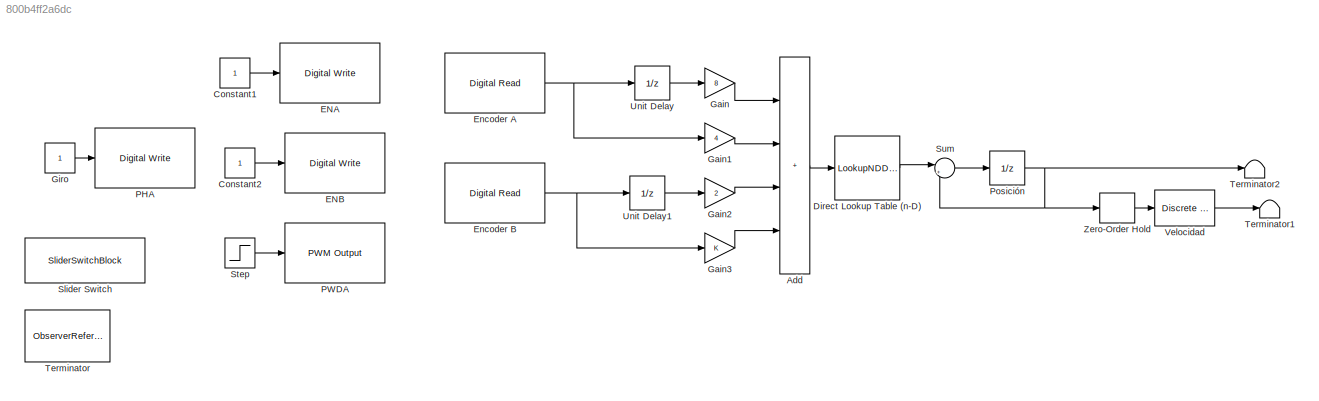
MODEL slx_800b4ff2a6dc
KIND model
CONFIG AbsTol = auto
CONFIG EnableMultiTasking = on
CONFIG FixedStep = auto
CONFIG MaxStep = auto
CONFIG MinStep = auto
CONFIG RelTol = 1e-3
CONFIG SampleTimeConstraint = Unconstrained
CONFIG SolverName = FixedStepAuto
CONFIG StartTime = 0.0
CONFIG StopTime = 10.0
BLOCK [Sum] Add
  IconShape = rectangular
  Inputs = ++++
  OutDataTypeStr = double
  Ports = [4, 1]
BLOCK [Constant] Constant1
BLOCK [Constant] Constant2
BLOCK [LookupNDDirect] Direct Lookup Table (n-D)
  NumberOfTableDimensions = 1
  Ports = [1, 1]
  Table = [0,-1,1,0,1,0,0,-1,-1,0,0,1,0,1,-1,0]
BLOCK [Reference] ENA  REF=mbedblockslib/Digital Write
  Ports = [1]
  SourceBlock = mbedblockslib/Digital Write
  SourceProductBaseCode = MICROBIT,NUCLEO,STMICRODIS
  SourceType = mbed.DigitalWrite
BLOCK [Reference] ENB  REF=mbedblockslib/Digital Write
  Ports = [1]
  SourceBlock = mbedblockslib/Digital Write
  SourceProductBaseCode = MICROBIT,NUCLEO,STMICRODIS
  SourceType = mbed.DigitalWrite
BLOCK [Reference] Encoder A  REF=mbedblockslib/Digital Read
  Ports = [0, 1]
  SourceBlock = mbedblockslib/Digital Read
  SourceProductBaseCode = MICROBIT,NUCLEO,STMICRODIS
  SourceType = mbed.DigitalRead
BLOCK [Reference] Encoder B  REF=mbedblockslib/Digital Read
  Ports = [0, 1]
  SourceBlock = mbedblockslib/Digital Read
  SourceProductBaseCode = MICROBIT,NUCLEO,STMICRODIS
  SourceType = mbed.DigitalRead
BLOCK [Gain] Gain
  Gain = 8
BLOCK [Gain] Gain1
  Gain = 4
BLOCK [Gain] Gain2
  Gain = 2
BLOCK [Gain] Gain3
BLOCK [Constant] Giro
BLOCK [Reference] PHA  REF=mbedblockslib/Digital Write
  Ports = [1]
  SourceBlock = mbedblockslib/Digital Write
  SourceProductBaseCode = MICROBIT,NUCLEO,STMICRODIS
  SourceType = mbed.DigitalWrite
BLOCK [Reference] PWDA  REF=mbedblockslib/PWM Output
  Ports = [1]
  SourceBlock = mbedblockslib/PWM Output
  SourceProductBaseCode = MICROBIT,NUCLEO,STMICRODIS
  SourceType = mbed.PWMOutput
BLOCK [UnitDelay] Posición
  HasFrameUpgradeWarning = on
  SampleTime = -1
BLOCK [SliderSwitchBlock] Slider Switch
BLOCK [Step] Step
  After = 50
  SampleTime = 0
  Time = 0
BLOCK [Sum] Sum
  Inputs = |++
  Ports = [2, 1]
BLOCK [ObserverReference] Terminator
  ObserverModelName = untitled_Observer1
BLOCK [Terminator] Terminator1
BLOCK [Terminator] Terminator2
BLOCK [UnitDelay] Unit Delay
  HasFrameUpgradeWarning = on
  SampleTime = -1
BLOCK [UnitDelay] Unit Delay1
  HasFrameUpgradeWarning = on
  SampleTime = -1
BLOCK [Reference] Velocidad  REF=simulink/Discrete/Discrete Derivative
  Ports = [1, 1]
  SourceBlock = simulink/Discrete/Discrete Derivative
  SourceProductBaseCode = SL
  SourceType = Discrete Derivative
BLOCK [ZeroOrderHold] Zero-Order Hold
  SampleTime = 0.01
LINE Add:1 -> Direct Lookup Table (n-D):1
LINE Constant1:1 -> ENA:1
LINE Constant2:1 -> ENB:1
LINE Direct Lookup Table (n-D):1 -> Sum:1
NET Encoder A:1 -> Gain1:1, Unit Delay:1
NET Encoder B:1 -> Gain3:1, Unit Delay1:1
LINE Gain1:1 -> Add:2
LINE Gain2:1 -> Add:3
LINE Gain3:1 -> Add:4
LINE Gain:1 -> Add:1
LINE Giro:1 -> PHA:1
NET Posición:1 -> Sum:2, Terminator2:1, Zero-Order Hold:1
LINE Step:1 -> PWDA:1
LINE Sum:1 -> Posición:1
LINE Unit Delay1:1 -> Gain2:1
LINE Unit Delay:1 -> Gain:1
LINE Velocidad:1 -> Terminator1:1
LINE Zero-Order Hold:1 -> Velocidad:1
note: NET lines group one-source signal fan-out (src -> all destinations, sorted); 1:1 wires keep LINE
